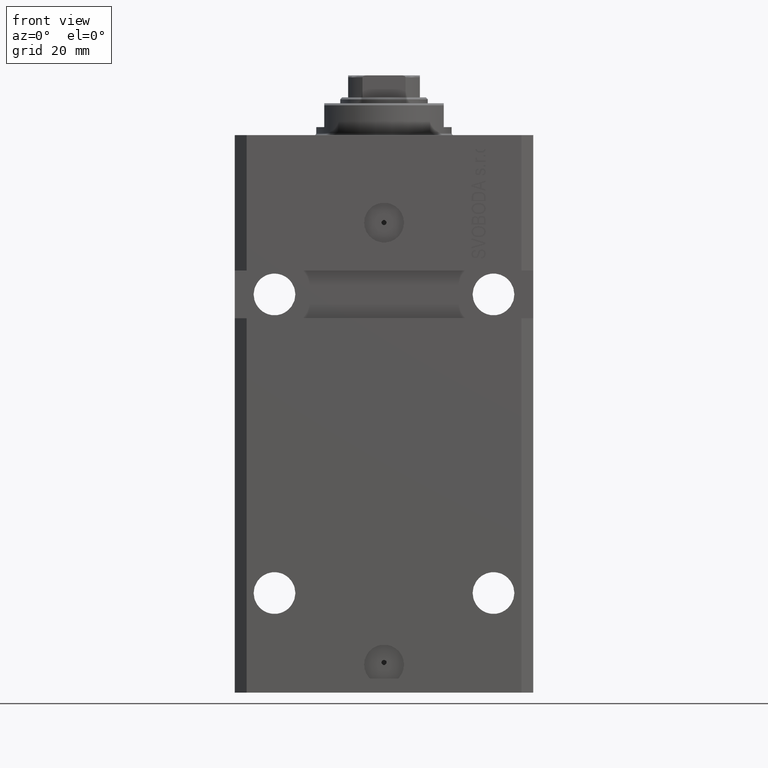
[diagram: clean part render]
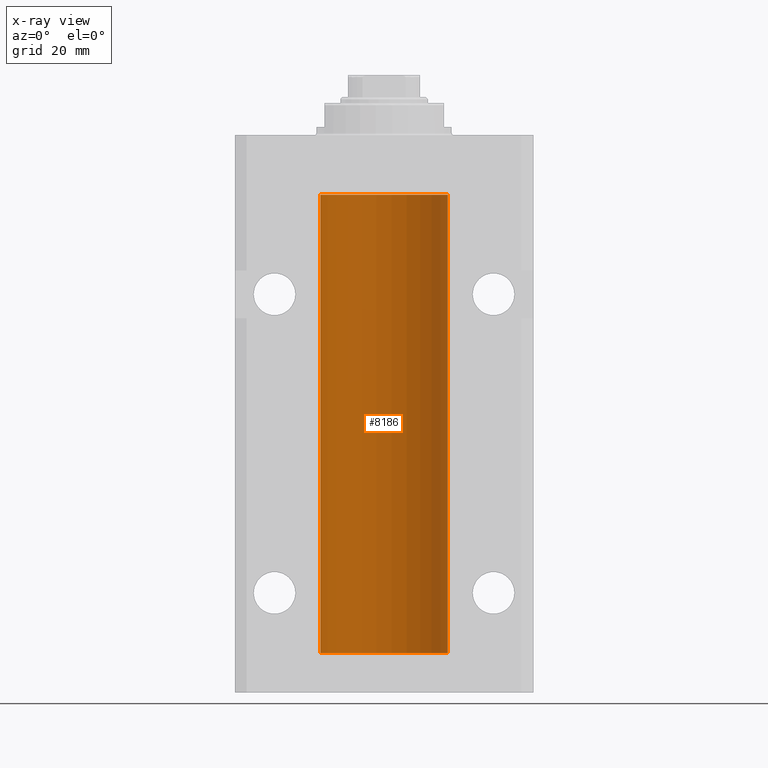
[diagram: x-ray — body ghosted, one internal face saturated and labeled with its STEP entity id]
A machine part, front view, then the same camera in x-ray: the body is ghosted and one INTERNAL B-rep face — a face not visible from any outside direction — is saturated and labeled: STEP entity #8186.
In plain terms, the highlighted cylindrical surface (partial cylindrical patch) has radius 16 mm, axis along (0, 0, 1).
Its self-contained STEP definition (entity closure, byte-faithful):
#33 = VERTEX_POINT ( 'NONE', #22530 ) ;
#179 = CARTESIAN_POINT ( 'NONE',  ( -15.99548640841682712, 0.3843705577988635880, -127.5004662852700932 ) ) ;
#576 = CARTESIAN_POINT ( 'NONE',  ( -16.00000000000000711, 0.08259886010189904093, -21.37500000000000000 ) ) ;
#1559 = VERTEX_POINT ( 'NONE', #30099 ) ;
#1967 = AXIS2_PLACEMENT_3D ( 'NONE', #35503, #43139, #46733 ) ;
#2323 = DIRECTION ( 'NONE',  ( 0.000000000000000000, 0.000000000000000000, 1.000000000000000000 ) ) ;
#2416 = ORIENTED_EDGE ( 'NONE', *, *, #41725, .T. ) ;
#3270 = EDGE_CURVE ( 'NONE', #14929, #36258, #29648, .T. ) ;
#3282 = LINE ( 'NONE', #21966, #38892 ) ;
#3426 = DIRECTION ( 'NONE',  ( -0.000000000000000000, -0.000000000000000000, 1.000000000000000000 ) ) ;
#4000 = CARTESIAN_POINT ( 'NONE',  ( -15.98778717651346604, 0.6250289588122058815, -128.0813158568705603 ) ) ;
#4458 = CARTESIAN_POINT ( 'NONE',  ( -16.00000000000000000, -1.314639473218082033E-14, -127.3749999999999858 ) ) ;
#4606 = CARTESIAN_POINT ( 'NONE',  ( -16.00000000000013145, 3.685127038166941002E-13, -22.62500000000341771 ) ) ;
#4872 = CARTESIAN_POINT ( 'NONE',  ( -15.99707730059171240, 0.3150375992092407373, -21.45402333202571654 ) ) ;
#5761 = CIRCLE ( 'NONE', #1967, 16.00000000000000000 ) ;
#6054 = VECTOR ( 'NONE', #40873, 1000.000000000000000 ) ;
#6225 = CARTESIAN_POINT ( 'NONE',  ( -16.00000000000000000, 1.959434878635765131E-15, -15.00000000000000000 ) ) ;
#6337 = DIRECTION ( 'NONE',  ( 1.000000000000000000, 0.000000000000000000, 0.000000000000000000 ) ) ;
#6343 = ORIENTED_EDGE ( 'NONE', *, *, #3270, .F. ) ;
#7126 = CARTESIAN_POINT ( 'NONE',  ( -15.99070653155267685, 0.5573233280232815501, -127.6734814868050449 ) ) ;
#7590 = CARTESIAN_POINT ( 'NONE',  ( -15.99070426498503217, 0.5462220647145575869, -128.3146006461414288 ) ) ;
#8070 = CARTESIAN_POINT ( 'NONE',  ( -15.99711699979841661, 0.3253759916140733233, -128.5585615162317765 ) ) ;
#8186 = ADVANCED_FACE ( 'NONE', ( #20711 ), #46323, .F. ) ;
#8211 = CARTESIAN_POINT ( 'NONE',  ( -16.00000000000000000, 1.643679961284177128E-16, -21.37499999999999645 ) ) ;
#8414 = AXIS2_PLACEMENT_3D ( 'NONE', #28132, #42720, #6337 ) ;
#10869 = LINE ( 'NONE', #43170, #24727 ) ;
#11531 = ORIENTED_EDGE ( 'NONE', *, *, #46160, .T. ) ;
#11667 = CARTESIAN_POINT ( 'NONE',  ( -15.99934216141748244, 0.1636497843296232380, -127.3912652802930694 ) ) ;
#11835 = CARTESIAN_POINT ( 'NONE',  ( -15.99228023727724413, 0.5003781296993413674, -22.38347829554236057 ) ) ;
#12068 = CARTESIAN_POINT ( 'NONE',  ( -15.99934216141748244, 0.1636497843296417787, -21.39126528029306229 ) ) ;
#12307 = CARTESIAN_POINT ( 'NONE',  ( -15.98779057735153941, 0.6249419637998100407, -21.83670145863507273 ) ) ;
#13970 = CARTESIAN_POINT ( 'NONE',  ( -16.00000000000000000, -1.314639473218082033E-14, -127.3749999999999858 ) ) ;
#14929 = VERTEX_POINT ( 'NONE', #8211 ) ;
#16353 = CARTESIAN_POINT ( 'NONE',  ( 16.00000000000000000, 0.000000000000000000, -130.0999999999999943 ) ) ;
#17898 = DIRECTION ( 'NONE',  ( -0.000000000000000000, -0.000000000000000000, 1.000000000000000000 ) ) ;
#19074 = CARTESIAN_POINT ( 'NONE',  ( -15.99707730059171240, 0.3150375992092247501, -127.4540233320256561 ) ) ;
#19823 = EDGE_CURVE ( 'NONE', #40821, #1559, #28914, .T. ) ;
#20711 = FACE_OUTER_BOUND ( 'NONE', #39480, .T. ) ;
#21647 = VERTEX_POINT ( 'NONE', #4606 ) ;
#21864 = ORIENTED_EDGE ( 'NONE', *, *, #19823, .T. ) ;
#21966 = CARTESIAN_POINT ( 'NONE',  ( -16.00000000000000000, 1.959434878635765131E-15, -130.0999999999999943 ) ) ;
#22530 = CARTESIAN_POINT ( 'NONE',  ( 16.00000000000000000, 0.000000000000000000, -15.00000000000000000 ) ) ;
#22755 = ORIENTED_EDGE ( 'NONE', *, *, #26854, .T. ) ;
#24114 = CARTESIAN_POINT ( 'NONE',  ( 16.00000000000000000, 0.000000000000000000, -130.0999999999999943 ) ) ;
#24563 = ORIENTED_EDGE ( 'NONE', *, *, #32745, .F. ) ;
#24727 = VECTOR ( 'NONE', #3426, 1000.000000000000000 ) ;
#26263 = CARTESIAN_POINT ( 'NONE',  ( -16.00000000000013145, 3.685127464164956467E-13, -128.6250000000034390 ) ) ;
#26434 = CARTESIAN_POINT ( 'NONE',  ( -15.99711699979842017, 0.3253759916140657737, -22.55856151623175521 ) ) ;
#26854 = EDGE_CURVE ( 'NONE', #33, #36258, #5761, .T. ) ;
#27629 = AXIS2_PLACEMENT_3D ( 'NONE', #35143, #2323, #27715 ) ;
#27709 = LINE ( 'NONE', #24114, #46695 ) ;
#27715 = DIRECTION ( 'NONE',  ( 1.000000000000000000, 0.000000000000000000, 0.000000000000000000 ) ) ;
#27805 = CARTESIAN_POINT ( 'NONE',  ( -15.99548640841683067, 0.3843705577988847377, -21.50046628527008608 ) ) ;
#28132 = CARTESIAN_POINT ( 'NONE',  ( 0.000000000000000000, 0.000000000000000000, -130.0999999999999943 ) ) ;
#28914 = B_SPLINE_CURVE_WITH_KNOTS ( 'NONE', 3,
 ( #4458, #32991, #11667, #19074, #179, #7126, #32753, #4000, #40398, #7590, #29635, #8070, #36577, #26263 ),
 .UNSPECIFIED., .F., .F.,
 ( 4, 2, 2, 2, 2, 2, 4 ),
 ( 2.457764170500729066E-18, 0.0002442776652680811759, 0.0004885553305361599666, 0.0009771106610723173311, 0.001221388326340437647, 0.001465665991608557962, 0.001954221322144799027 ),
 .UNSPECIFIED. ) ;
#29420 = CARTESIAN_POINT ( 'NONE',  ( -16.00000000000000000, 1.959434878635765131E-15, -130.0999999999999943 ) ) ;
#29635 = CARTESIAN_POINT ( 'NONE',  ( -15.99228023727723702, 0.5003781296993445871, -128.3834782955424032 ) ) ;
#29648 = LINE ( 'NONE', #29420, #6054 ) ;
#29807 = CARTESIAN_POINT ( 'NONE',  ( -15.98778717651346071, 0.6250289588122140971, -22.08131585687052478 ) ) ;
#30099 = CARTESIAN_POINT ( 'NONE',  ( -16.00000000000013145, 3.685127464164956467E-13, -128.6250000000034390 ) ) ;
#30504 = CARTESIAN_POINT ( 'NONE',  ( -15.99070653155267685, 0.5573233280232986475, -21.67348148680506625 ) ) ;
#31223 = B_SPLINE_CURVE_WITH_KNOTS ( 'NONE', 3,
 ( #44621, #576, #12068, #4872, #27805, #30504, #12307, #29807, #44390, #33622, #11835, #26434, #36987, #34102 ),
 .UNSPECIFIED., .F., .F.,
 ( 4, 2, 2, 2, 2, 2, 4 ),
 ( 1.597328219370744179E-19, 0.0002442776652680942405, 0.0004885553305361882643, 0.0009771106610723839011, 0.001221388326340481665, 0.001465665991608579430, 0.001954221322144767369 ),
 .UNSPECIFIED. ) ;
#32745 = EDGE_CURVE ( 'NONE', #40821, #21647, #3282, .T. ) ;
#32753 = CARTESIAN_POINT ( 'NONE',  ( -15.98779057735154296, 0.6249419637998029353, -127.8367014586350763 ) ) ;
#32991 = CARTESIAN_POINT ( 'NONE',  ( -16.00000000000000355, 0.08259886010188438599, -127.3749999999999574 ) ) ;
#33622 = CARTESIAN_POINT ( 'NONE',  ( -15.99070426498503217, 0.5462220647145618058, -22.31460064614143590 ) ) ;
#34102 = CARTESIAN_POINT ( 'NONE',  ( -16.00000000000013145, 3.685127038166941002E-13, -22.62500000000341771 ) ) ;
#35143 = CARTESIAN_POINT ( 'NONE',  ( 0.000000000000000000, 0.000000000000000000, -130.0999999999999943 ) ) ;
#35503 = CARTESIAN_POINT ( 'NONE',  ( 0.000000000000000000, 0.000000000000000000, -15.00000000000000000 ) ) ;
#36258 = VERTEX_POINT ( 'NONE', #6225 ) ;
#36577 = CARTESIAN_POINT ( 'NONE',  ( -15.99999999999999289, 0.1631714642025817730, -128.6249999999999147 ) ) ;
#36987 = CARTESIAN_POINT ( 'NONE',  ( -16.00000000000000000, 0.1631714642025800244, -22.62499999999985789 ) ) ;
#38283 = CARTESIAN_POINT ( 'NONE',  ( -16.00000000000000000, 1.959434878635765131E-15, -130.0999999999999943 ) ) ;
#38892 = VECTOR ( 'NONE', #17898, 1000.000000000000000 ) ;
#39480 = EDGE_LOOP ( 'NONE', ( #40015, #45326, #2416, #22755, #6343, #11531, #24563, #21864 ) ) ;
#40015 = ORIENTED_EDGE ( 'NONE', *, *, #47162, .F. ) ;
#40398 = CARTESIAN_POINT ( 'NONE',  ( -15.98844267028591482, 0.6088369347963276113, -128.1632473502432674 ) ) ;
#40821 = VERTEX_POINT ( 'NONE', #13970 ) ;
#40873 = DIRECTION ( 'NONE',  ( -0.000000000000000000, -0.000000000000000000, 1.000000000000000000 ) ) ;
#41725 = EDGE_CURVE ( 'NONE', #43339, #33, #27709, .T. ) ;
#42680 = EDGE_CURVE ( 'NONE', #43339, #46416, #43667, .T. ) ;
#42720 = DIRECTION ( 'NONE',  ( -0.000000000000000000, -0.000000000000000000, 1.000000000000000000 ) ) ;
#43139 = DIRECTION ( 'NONE',  ( 0.000000000000000000, 0.000000000000000000, 1.000000000000000000 ) ) ;
#43170 = CARTESIAN_POINT ( 'NONE',  ( -16.00000000000000000, 1.959434878635765131E-15, -130.0999999999999943 ) ) ;
#43339 = VERTEX_POINT ( 'NONE', #16353 ) ;
#43667 = CIRCLE ( 'NONE', #27629, 16.00000000000000000 ) ;
#44390 = CARTESIAN_POINT ( 'NONE',  ( -15.98844267028591482, 0.6088369347963316081, -22.16324735024328518 ) ) ;
#44621 = CARTESIAN_POINT ( 'NONE',  ( -16.00000000000000000, 1.643679961284177128E-16, -21.37499999999999645 ) ) ;
#45326 = ORIENTED_EDGE ( 'NONE', *, *, #42680, .F. ) ;
#46160 = EDGE_CURVE ( 'NONE', #14929, #21647, #31223, .T. ) ;
#46323 = CYLINDRICAL_SURFACE ( 'NONE', #8414, 16.00000000000000000 ) ;
#46366 = DIRECTION ( 'NONE',  ( -0.000000000000000000, -0.000000000000000000, 1.000000000000000000 ) ) ;
#46416 = VERTEX_POINT ( 'NONE', #38283 ) ;
#46695 = VECTOR ( 'NONE', #46366, 1000.000000000000000 ) ;
#46733 = DIRECTION ( 'NONE',  ( 1.000000000000000000, 0.000000000000000000, 0.000000000000000000 ) ) ;
#47162 = EDGE_CURVE ( 'NONE', #46416, #1559, #10869, .T. ) ;